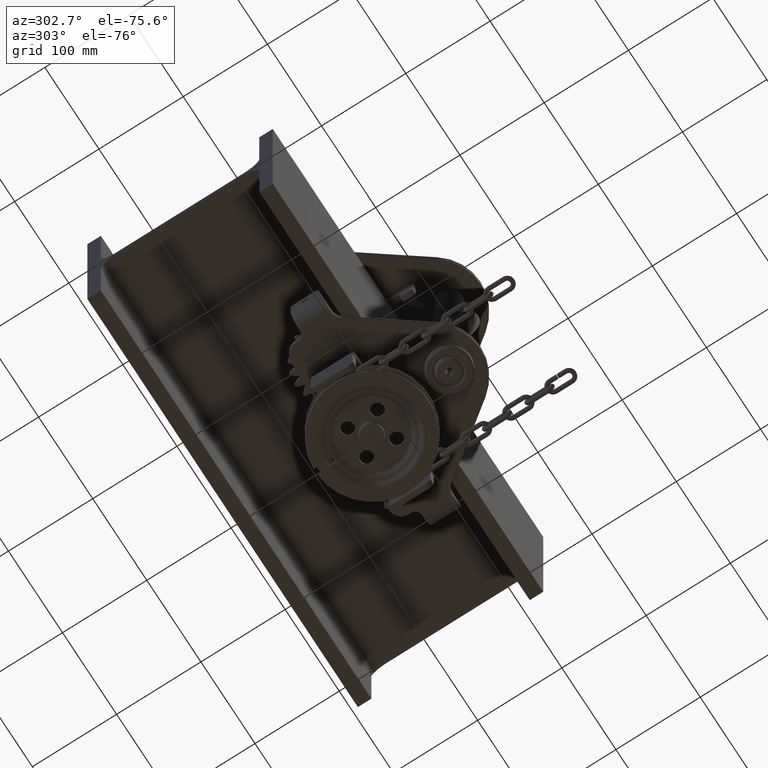
[diagram: clean part render]
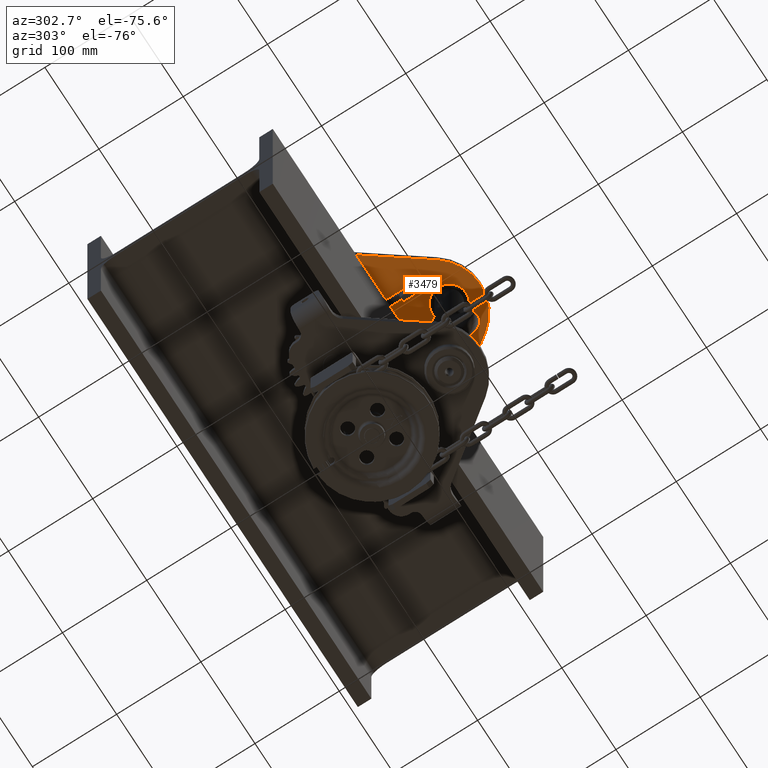
[diagram: same view with one face highlighted and labeled with its STEP entity id]
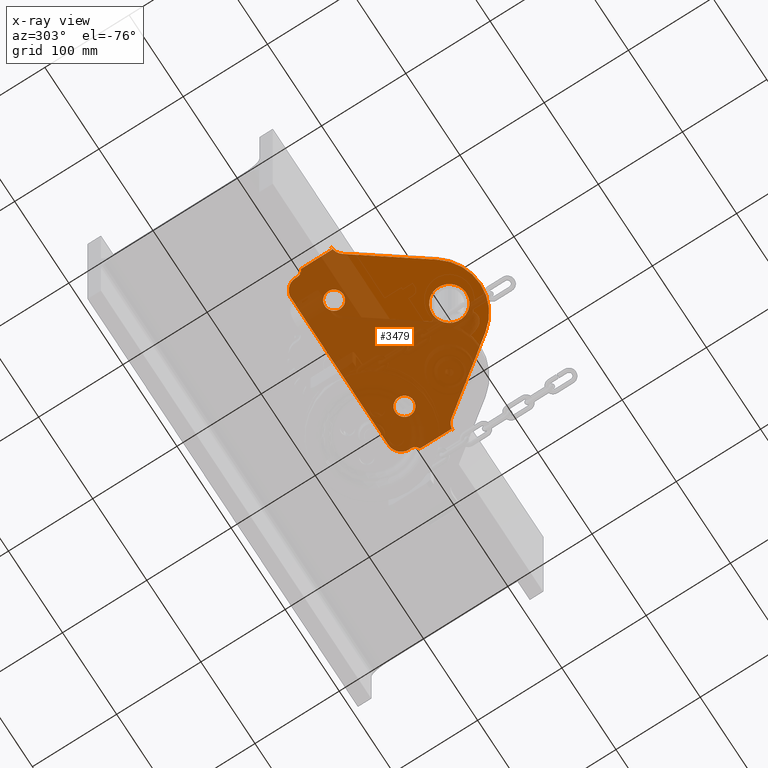
[diagram: x-ray of the same camera — body ghosted, the highlighted face saturated]
A machine part, auxiliary view. The second image highlights one B-rep face of the part: STEP entity #3479.
The next image is the same camera in x-ray: the body ghosted, the highlighted face saturated — about 77% of this face is hidden behind the body in this view.
In plain terms, the highlighted planar face has unit normal (-0, 0, -1).
Its self-contained STEP definition (entity closure, byte-faithful):
#1458 = EDGE_CURVE ( 'NONE', #83874, #90573, #79619, .T. ) ;
#1732 = ORIENTED_EDGE ( 'NONE', *, *, #45397, .F. ) ;
#1917 = VERTEX_POINT ( 'NONE', #45807 ) ;
#2074 = ORIENTED_EDGE ( 'NONE', *, *, #93960, .T. ) ;
#2463 = CIRCLE ( 'NONE', #70470, 11.00000000000001100 ) ;
#3132 = DIRECTION ( 'NONE',  ( 0.0000000000000000000, -1.000000000000000000, 0.0000000000000000000 ) ) ;
#3479 = ADVANCED_FACE ( 'NONE', ( #15640, #96973, #88184, #98196 ), #98238, .T. ) ;
#3515 = DIRECTION ( 'NONE',  ( 6.938893903907227100E-017, 1.000000000000000000, 6.193977041085477700E-017 ) ) ;
#4311 = CARTESIAN_POINT ( 'NONE',  ( 110.0000000000000400, -28.99999999999996800, 124.9999999999999900 ) ) ;
#4833 = CIRCLE ( 'NONE', #91288, 11.00000000000001100 ) ;
#5081 = DIRECTION ( 'NONE',  ( 4.044428222264131600E-017, -6.193977041085480200E-017, 1.000000000000000000 ) ) ;
#5098 = CARTESIAN_POINT ( 'NONE',  ( -105.0000000000021300, -195.9999999999969600, 124.9999999999999900 ) ) ;
#5519 = EDGE_CURVE ( 'NONE', #50858, #74030, #55967, .T. ) ;
#5746 = EDGE_CURVE ( 'NONE', #78661, #1917, #62520, .T. ) ;
#6054 = DIRECTION ( 'NONE',  ( -1.000000000000000000, 0.0000000000000000000, 0.0000000000000000000 ) ) ;
#6699 = DIRECTION ( 'NONE',  ( -0.5921847175051812000, 0.8058022464310388200, 7.386169198320425100E-017 ) ) ;
#8563 = CARTESIAN_POINT ( 'NONE',  ( -90.00000000000004300, -43.99999999999995000, 125.0000000000000000 ) ) ;
#9294 = VERTEX_POINT ( 'NONE', #58500 ) ;
#9796 = DIRECTION ( 'NONE',  ( -4.044428222264130300E-017, 6.193977041085480200E-017, -1.000000000000000000 ) ) ;
#11373 = DIRECTION ( 'NONE',  ( -7.198470905858327200E-017, 6.193977041085480200E-017, -1.000000000000000000 ) ) ;
#12069 = LINE ( 'NONE', #5098, #69552 ) ;
#12510 = CARTESIAN_POINT ( 'NONE',  ( -105.0000000000000600, -45.99999999999995700, 125.0000000000000000 ) ) ;
#12712 = DIRECTION ( 'NONE',  ( -7.198470905858327200E-017, 6.193977041085480200E-017, -1.000000000000000000 ) ) ;
#13845 = EDGE_CURVE ( 'NONE', #90573, #62563, #31349, .T. ) ;
#14089 = AXIS2_PLACEMENT_3D ( 'NONE', #18121, #42687, #3132 ) ;
#15266 = DIRECTION ( 'NONE',  ( 1.000000000000000000, -8.326672684688671600E-017, -7.198470905858326000E-017 ) ) ;
#15492 = EDGE_LOOP ( 'NONE', ( #100510, #15988, #54061, #75626, #29314, #74728, #90958, #63135, #66766, #18780, #61231, #36852, #2074, #19865, #46089, #90044 ) ) ;
#15553 = AXIS2_PLACEMENT_3D ( 'NONE', #60570, #12712, #62641 ) ;
#15624 = CARTESIAN_POINT ( 'NONE',  ( 0.0000000000000000000, -158.9999999999999700, 124.9999999999999900 ) ) ;
#15640 = FACE_OUTER_BOUND ( 'NONE', #15492, .T. ) ;
#15988 = ORIENTED_EDGE ( 'NONE', *, *, #36945, .T. ) ;
#16943 = DIRECTION ( 'NONE',  ( -1.000000000000000000, 0.0000000000000000000, 0.0000000000000000000 ) ) ;
#17261 = CARTESIAN_POINT ( 'NONE',  ( -64.99999999999998600, -63.99999999999994300, 125.0000000000000000 ) ) ;
#18121 = CARTESIAN_POINT ( 'NONE',  ( 65.00000000000005700, -63.99999999999997200, 125.0000000000000000 ) ) ;
#18589 = VERTEX_POINT ( 'NONE', #26391 ) ;
#18780 = ORIENTED_EDGE ( 'NONE', *, *, #13845, .T. ) ;
#18875 = CARTESIAN_POINT ( 'NONE',  ( 110.0000000000000300, -195.9999999999999700, 124.9999999999999700 ) ) ;
#19394 = AXIS2_PLACEMENT_3D ( 'NONE', #15624, #71597, #23661 ) ;
#19865 = ORIENTED_EDGE ( 'NONE', *, *, #40314, .T. ) ;
#19916 = VERTEX_POINT ( 'NONE', #96744 ) ;
#19924 = CARTESIAN_POINT ( 'NONE',  ( -110.0000000000000000, -53.41619848709559200, 125.0000000000000000 ) ) ;
#20872 = DIRECTION ( 'NONE',  ( 1.380839886877535400E-014, -1.000000000000000000, -6.193977041085534400E-017 ) ) ;
#20900 = VECTOR ( 'NONE', #3515, 1000.000000000000000 ) ;
#20926 = CARTESIAN_POINT ( 'NONE',  ( -112.5914770212120700, -90.99999999999995700, 125.0000000000001100 ) ) ;
#21720 = AXIS2_PLACEMENT_3D ( 'NONE', #84184, #91225, #28290 ) ;
#22364 = EDGE_CURVE ( 'NONE', #75303, #85453, #49220, .T. ) ;
#22827 = CARTESIAN_POINT ( 'NONE',  ( -113.0000000000000300, -45.99999999999995700, 125.0000000000000000 ) ) ;
#23118 = CARTESIAN_POINT ( 'NONE',  ( -130.0000000000000000, -90.99999999999992900, 124.9999999999999900 ) ) ;
#23527 = CIRCLE ( 'NONE', #52845, 7.999999999999992900 ) ;
#23661 = DIRECTION ( 'NONE',  ( -6.938893903907225900E-017, -1.000000000000000000, 0.0000000000000000000 ) ) ;
#24180 = AXIS2_PLACEMENT_3D ( 'NONE', #70093, #101479, #53695 ) ;
#25907 = DIRECTION ( 'NONE',  ( -1.000000000000000000, 8.326672684688671600E-017, 4.044428222264131000E-017 ) ) ;
#26391 = CARTESIAN_POINT ( 'NONE',  ( 65.00000000000005700, -74.99999999999997200, 125.0000000000000000 ) ) ;
#27569 = EDGE_LOOP ( 'NONE', ( #28863, #45028 ) ) ;
#28290 = DIRECTION ( 'NONE',  ( 0.0000000000000000000, -1.000000000000000000, 0.0000000000000000000 ) ) ;
#28600 = CARTESIAN_POINT ( 'NONE',  ( 100.5044433247464900, -97.11722923742222200, 124.9999999999999700 ) ) ;
#28863 = ORIENTED_EDGE ( 'NONE', *, *, #5746, .F. ) ;
#29141 = EDGE_CURVE ( 'NONE', #19916, #37384, #4833, .T. ) ;
#29165 = CIRCLE ( 'NONE', #53927, 15.00000000000000000 ) ;
#29204 = CARTESIAN_POINT ( 'NONE',  ( -112.5914770212120700, -105.9999999999999600, 124.9999999999999900 ) ) ;
#29314 = ORIENTED_EDGE ( 'NONE', *, *, #94414, .T. ) ;
#29359 = VERTEX_POINT ( 'NONE', #55076 ) ;
#30075 = CIRCLE ( 'NONE', #99193, 15.00000000000000000 ) ;
#31218 = EDGE_CURVE ( 'NONE', #85453, #73589, #76876, .T. ) ;
#31349 = LINE ( 'NONE', #68834, #71333 ) ;
#31580 = DIRECTION ( 'NONE',  ( 1.000000000000000000, -8.326672684688671600E-017, -7.198470905858326000E-017 ) ) ;
#32458 = CARTESIAN_POINT ( 'NONE',  ( -130.0000000000000000, -90.99999999999992900, 124.9999999999999900 ) ) ;
#33519 = VERTEX_POINT ( 'NONE', #101484 ) ;
#34271 = VERTEX_POINT ( 'NONE', #28600 ) ;
#35352 = CARTESIAN_POINT ( 'NONE',  ( -90.00000000000004300, -28.99999999999996100, 125.0000000000000000 ) ) ;
#35842 = VERTEX_POINT ( 'NONE', #73074 ) ;
#36142 = AXIS2_PLACEMENT_3D ( 'NONE', #18875, #9796, #25907 ) ;
#36571 = EDGE_CURVE ( 'NONE', #18589, #29359, #97605, .T. ) ;
#36798 = CARTESIAN_POINT ( 'NONE',  ( -110.0000000000000000, -90.99999999999992900, 124.9999999999999700 ) ) ;
#36852 = ORIENTED_EDGE ( 'NONE', *, *, #103674, .F. ) ;
#36945 = EDGE_CURVE ( 'NONE', #73589, #59935, #78675, .T. ) ;
#37260 = EDGE_CURVE ( 'NONE', #83874, #88511, #82294, .T. ) ;
#37384 = VERTEX_POINT ( 'NONE', #52181 ) ;
#37614 = EDGE_CURVE ( 'NONE', #59935, #50858, #38388, .T. ) ;
#38388 = LINE ( 'NONE', #23118, #47114 ) ;
#40163 = EDGE_CURVE ( 'NONE', #1917, #78661, #68886, .T. ) ;
#40314 = EDGE_CURVE ( 'NONE', #35842, #34271, #30075, .T. ) ;
#41902 = DIRECTION ( 'NONE',  ( 4.044428222264131600E-017, -6.193977041085480200E-017, 1.000000000000000000 ) ) ;
#42687 = DIRECTION ( 'NONE',  ( -7.198470905858327200E-017, 6.193977041085480200E-017, -1.000000000000000000 ) ) ;
#44690 = CARTESIAN_POINT ( 'NONE',  ( -110.0000000000000000, -195.9999999999999400, 124.9999999999999900 ) ) ;
#44885 = EDGE_LOOP ( 'NONE', ( #51795, #1732 ) ) ;
#45028 = ORIENTED_EDGE ( 'NONE', *, *, #40163, .F. ) ;
#45249 = AXIS2_PLACEMENT_3D ( 'NONE', #29204, #5081, #60990 ) ;
#45397 = EDGE_CURVE ( 'NONE', #37384, #19916, #2463, .T. ) ;
#45807 = CARTESIAN_POINT ( 'NONE',  ( -7.068988463079112800E-016, -138.8999999999999800, 124.9999999999999900 ) ) ;
#45925 = AXIS2_PLACEMENT_3D ( 'NONE', #22827, #63034, #71108 ) ;
#46032 = EDGE_LOOP ( 'NONE', ( #93878, #47141 ) ) ;
#46089 = ORIENTED_EDGE ( 'NONE', *, *, #71374, .T. ) ;
#47114 = VECTOR ( 'NONE', #31580, 1000.000000000000000 ) ;
#47141 = ORIENTED_EDGE ( 'NONE', *, *, #78129, .F. ) ;
#48308 = VERTEX_POINT ( 'NONE', #12510 ) ;
#49156 = DIRECTION ( 'NONE',  ( -7.198470905858327200E-017, 6.193977041085480200E-017, -1.000000000000000000 ) ) ;
#49220 = CIRCLE ( 'NONE', #24180, 55.00000000000002100 ) ;
#49525 = EDGE_CURVE ( 'NONE', #33519, #88511, #29165, .T. ) ;
#50356 = DIRECTION ( 'NONE',  ( -1.000000000000000000, 0.0000000000000000000, 0.0000000000000000000 ) ) ;
#50858 = VERTEX_POINT ( 'NONE', #36798 ) ;
#51795 = ORIENTED_EDGE ( 'NONE', *, *, #29141, .F. ) ;
#52181 = CARTESIAN_POINT ( 'NONE',  ( -64.99999999999998600, -52.99999999999993600, 125.0000000000000000 ) ) ;
#52845 = AXIS2_PLACEMENT_3D ( 'NONE', #65743, #97828, #50356 ) ;
#53088 = VECTOR ( 'NONE', #6699, 1000.000000000000100 ) ;
#53695 = DIRECTION ( 'NONE',  ( -1.000000000000000000, 0.0000000000000000000, 0.0000000000000000000 ) ) ;
#53927 = AXIS2_PLACEMENT_3D ( 'NONE', #8563, #64516, #16943 ) ;
#54061 = ORIENTED_EDGE ( 'NONE', *, *, #37614, .T. ) ;
#54063 = CARTESIAN_POINT ( 'NONE',  ( 105.0000000000000000, -43.99999999999995000, 124.9999999999999900 ) ) ;
#54637 = CARTESIAN_POINT ( 'NONE',  ( 20.50108546915821600, -261.7728241056755100, 124.9999999999999700 ) ) ;
#54898 = CARTESIAN_POINT ( 'NONE',  ( 110.0000000000000300, -53.41619848709564900, 124.9999999999999900 ) ) ;
#55076 = CARTESIAN_POINT ( 'NONE',  ( 65.00000000000005700, -52.99999999999997900, 125.0000000000000000 ) ) ;
#55967 = LINE ( 'NONE', #44690, #75892 ) ;
#56840 = EDGE_CURVE ( 'NONE', #48308, #33519, #12069, .T. ) ;
#56915 = CIRCLE ( 'NONE', #45925, 7.999999999999992900 ) ;
#57058 = CARTESIAN_POINT ( 'NONE',  ( 105.0000000000000300, -45.99999999999994300, 124.9999999999999900 ) ) ;
#57185 = DIRECTION ( 'NONE',  ( 0.0000000000000000000, -1.000000000000000000, 0.0000000000000000000 ) ) ;
#57836 = DIRECTION ( 'NONE',  ( -0.5921847175051813100, -0.8058022464310389300, -2.596072029777490700E-017 ) ) ;
#58500 = CARTESIAN_POINT ( 'NONE',  ( 110.0000000000000300, -90.99999999999994300, 124.9999999999999700 ) ) ;
#59269 = CARTESIAN_POINT ( 'NONE',  ( -64.99999999999998600, -63.99999999999994300, 125.0000000000000000 ) ) ;
#59935 = VERTEX_POINT ( 'NONE', #20926 ) ;
#60213 = DIRECTION ( 'NONE',  ( -1.000000000000000000, 8.326672684688671600E-017, 4.044428222264131600E-017 ) ) ;
#60570 = CARTESIAN_POINT ( 'NONE',  ( 0.0000000000000000000, -158.9999999999999700, 124.9999999999999900 ) ) ;
#60990 = DIRECTION ( 'NONE',  ( -1.000000000000000000, 0.0000000000000000000, 0.0000000000000000000 ) ) ;
#61207 = AXIS2_PLACEMENT_3D ( 'NONE', #101750, #78747, #6054 ) ;
#61231 = ORIENTED_EDGE ( 'NONE', *, *, #77534, .T. ) ;
#62520 = CIRCLE ( 'NONE', #15553, 20.10000000000000900 ) ;
#62563 = VERTEX_POINT ( 'NONE', #57058 ) ;
#62641 = DIRECTION ( 'NONE',  ( -6.938893903907225900E-017, -1.000000000000000000, 0.0000000000000000000 ) ) ;
#63034 = DIRECTION ( 'NONE',  ( 4.044428222264131600E-017, -6.193977041085480200E-017, 1.000000000000000000 ) ) ;
#63135 = ORIENTED_EDGE ( 'NONE', *, *, #37260, .F. ) ;
#64516 = DIRECTION ( 'NONE',  ( -4.044428222264131600E-017, 6.193977041085480200E-017, -1.000000000000000000 ) ) ;
#64789 = CARTESIAN_POINT ( 'NONE',  ( 56.64911725311389300, -156.7923934587583700, 124.9999999999999900 ) ) ;
#65316 = CARTESIAN_POINT ( 'NONE',  ( 112.5914770212120700, -105.9999999999999400, 124.9999999999999700 ) ) ;
#65743 = CARTESIAN_POINT ( 'NONE',  ( 113.0000000000000000, -45.99999999999994300, 124.9999999999999900 ) ) ;
#66766 = ORIENTED_EDGE ( 'NONE', *, *, #1458, .T. ) ;
#68272 = CARTESIAN_POINT ( 'NONE',  ( 90.00000000000001400, -28.99999999999996800, 124.9999999999999900 ) ) ;
#68336 = VERTEX_POINT ( 'NONE', #54898 ) ;
#68834 = CARTESIAN_POINT ( 'NONE',  ( 105.0000000000020900, -196.0000000000000300, 124.9999999999999700 ) ) ;
#68886 = CIRCLE ( 'NONE', #19394, 20.10000000000000900 ) ;
#69073 = DIRECTION ( 'NONE',  ( 1.394717674685351000E-014, 1.000000000000000000, 6.193977041085421000E-017 ) ) ;
#69552 = VECTOR ( 'NONE', #69073, 1000.000000000000000 ) ;
#70093 = CARTESIAN_POINT ( 'NONE',  ( -1.387778780781445700E-014, -140.9999999999999700, 124.9999999999999700 ) ) ;
#70470 = AXIS2_PLACEMENT_3D ( 'NONE', #17261, #49156, #57185 ) ;
#71108 = DIRECTION ( 'NONE',  ( -1.000000000000000000, -8.673617379884043400E-016, 0.0000000000000000000 ) ) ;
#71333 = VECTOR ( 'NONE', #20872, 1000.000000000000000 ) ;
#71374 = EDGE_CURVE ( 'NONE', #34271, #75303, #87436, .T. ) ;
#71597 = DIRECTION ( 'NONE',  ( -7.198470905858327200E-017, 6.193977041085480200E-017, -1.000000000000000000 ) ) ;
#73074 = CARTESIAN_POINT ( 'NONE',  ( 112.5914770212120700, -90.99999999999994300, 124.9999999999999100 ) ) ;
#73589 = VERTEX_POINT ( 'NONE', #100776 ) ;
#74030 = VERTEX_POINT ( 'NONE', #19924 ) ;
#74728 = ORIENTED_EDGE ( 'NONE', *, *, #56840, .T. ) ;
#75232 = DIRECTION ( 'NONE',  ( 6.938893903907227100E-017, 1.000000000000000000, 6.193977041085477700E-017 ) ) ;
#75303 = VERTEX_POINT ( 'NONE', #78694 ) ;
#75626 = ORIENTED_EDGE ( 'NONE', *, *, #5519, .T. ) ;
#75892 = VECTOR ( 'NONE', #75232, 1000.000000000000000 ) ;
#76876 = LINE ( 'NONE', #54637, #53088 ) ;
#76912 = CARTESIAN_POINT ( 'NONE',  ( 110.0000000000000100, -195.9999999999999700, 124.9999999999999700 ) ) ;
#77534 = EDGE_CURVE ( 'NONE', #62563, #68336, #23527, .T. ) ;
#78129 = EDGE_CURVE ( 'NONE', #29359, #18589, #79926, .T. ) ;
#78661 = VERTEX_POINT ( 'NONE', #84226 ) ;
#78675 = CIRCLE ( 'NONE', #45249, 15.00000000000000000 ) ;
#78694 = CARTESIAN_POINT ( 'NONE',  ( 44.31912355370715100, -173.5701594627849400, 124.9999999999999700 ) ) ;
#78747 = DIRECTION ( 'NONE',  ( -4.044428222264131600E-017, 6.193977041085480200E-017, -1.000000000000000000 ) ) ;
#79619 = CIRCLE ( 'NONE', #61207, 15.00000000000000000 ) ;
#79926 = CIRCLE ( 'NONE', #14089, 10.99999999999999600 ) ;
#82294 = LINE ( 'NONE', #4311, #91020 ) ;
#82682 = LINE ( 'NONE', #32458, #101370 ) ;
#83874 = VERTEX_POINT ( 'NONE', #68272 ) ;
#84184 = CARTESIAN_POINT ( 'NONE',  ( 65.00000000000005700, -63.99999999999997200, 125.0000000000000000 ) ) ;
#84226 = CARTESIAN_POINT ( 'NONE',  ( -1.394717674685353100E-015, -179.0999999999999900, 124.9999999999999900 ) ) ;
#84919 = VECTOR ( 'NONE', #57836, 999.9999999999998900 ) ;
#85453 = VERTEX_POINT ( 'NONE', #85812 ) ;
#85812 = CARTESIAN_POINT ( 'NONE',  ( -44.31912355370713600, -173.5701594627849400, 125.0000000000000000 ) ) ;
#87224 = LINE ( 'NONE', #76912, #20900 ) ;
#87436 = LINE ( 'NONE', #64789, #84919 ) ;
#88184 = FACE_BOUND ( 'NONE', #46032, .T. ) ;
#88511 = VERTEX_POINT ( 'NONE', #35352 ) ;
#90044 = ORIENTED_EDGE ( 'NONE', *, *, #22364, .T. ) ;
#90573 = VERTEX_POINT ( 'NONE', #54063 ) ;
#90958 = ORIENTED_EDGE ( 'NONE', *, *, #49525, .T. ) ;
#91020 = VECTOR ( 'NONE', #60213, 1000.000000000000000 ) ;
#91225 = DIRECTION ( 'NONE',  ( -7.198470905858327200E-017, 6.193977041085480200E-017, -1.000000000000000000 ) ) ;
#91288 = AXIS2_PLACEMENT_3D ( 'NONE', #59269, #11373, #93088 ) ;
#93088 = DIRECTION ( 'NONE',  ( 0.0000000000000000000, -1.000000000000000000, 0.0000000000000000000 ) ) ;
#93878 = ORIENTED_EDGE ( 'NONE', *, *, #36571, .F. ) ;
#93960 = EDGE_CURVE ( 'NONE', #9294, #35842, #82682, .T. ) ;
#94414 = EDGE_CURVE ( 'NONE', #74030, #48308, #56915, .T. ) ;
#96744 = CARTESIAN_POINT ( 'NONE',  ( -64.99999999999998600, -74.99999999999995700, 125.0000000000000000 ) ) ;
#96973 = FACE_BOUND ( 'NONE', #27569, .T. ) ;
#97605 = CIRCLE ( 'NONE', #21720, 10.99999999999999600 ) ;
#97741 = DIRECTION ( 'NONE',  ( -1.000000000000000000, -4.625929269271485300E-015, 0.0000000000000000000 ) ) ;
#97828 = DIRECTION ( 'NONE',  ( 4.044428222264131600E-017, -6.193977041085480200E-017, 1.000000000000000000 ) ) ;
#98196 = FACE_BOUND ( 'NONE', #44885, .T. ) ;
#98238 = PLANE ( 'NONE',  #36142 ) ;
#99193 = AXIS2_PLACEMENT_3D ( 'NONE', #65316, #41902, #97741 ) ;
#100510 = ORIENTED_EDGE ( 'NONE', *, *, #31218, .T. ) ;
#100776 = CARTESIAN_POINT ( 'NONE',  ( -100.5044433247464900, -97.11722923742223700, 124.9999999999999900 ) ) ;
#101370 = VECTOR ( 'NONE', #15266, 1000.000000000000000 ) ;
#101479 = DIRECTION ( 'NONE',  ( -4.044428222264131600E-017, 6.193977041085480200E-017, -1.000000000000000000 ) ) ;
#101484 = CARTESIAN_POINT ( 'NONE',  ( -105.0000000000000300, -43.99999999999995000, 125.0000000000000000 ) ) ;
#101750 = CARTESIAN_POINT ( 'NONE',  ( 90.00000000000001400, -43.99999999999994300, 124.9999999999999900 ) ) ;
#103674 = EDGE_CURVE ( 'NONE', #9294, #68336, #87224, .T. ) ;